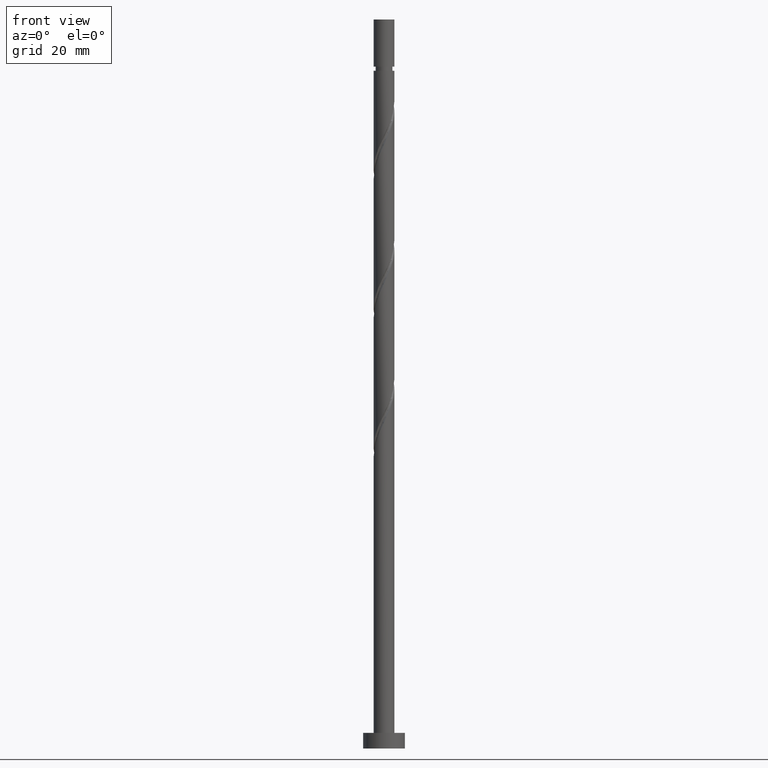
[diagram: clean part render]
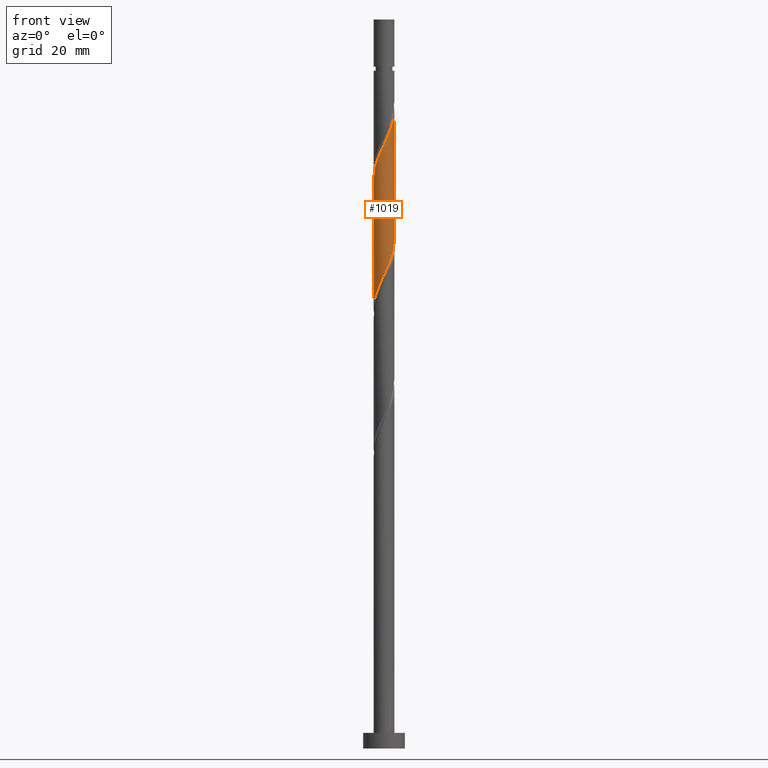
[diagram: same view with one face highlighted and labeled with its STEP entity id]
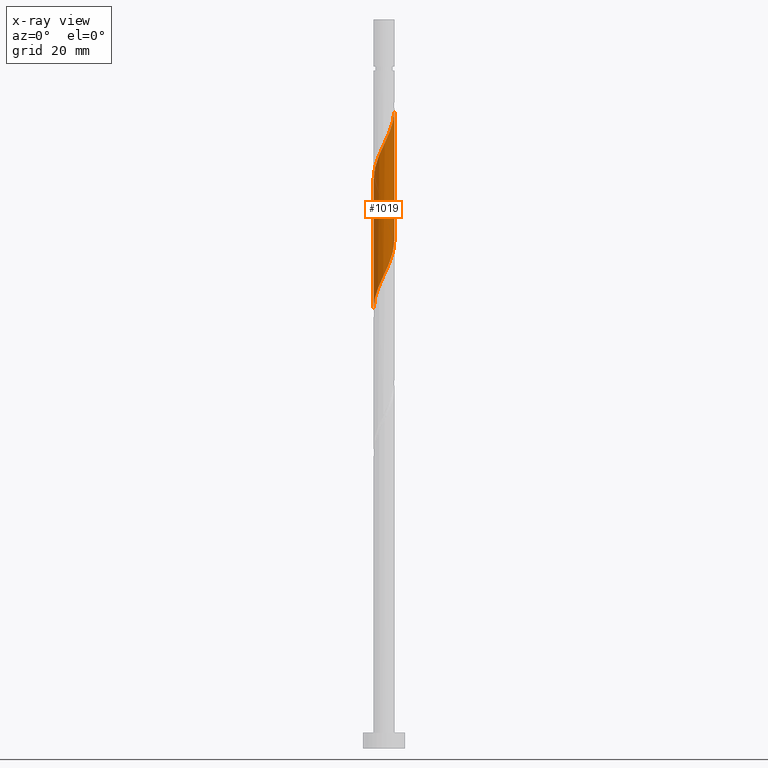
[diagram: x-ray of the same camera — body ghosted, the highlighted face saturated]
A machine part, front view. The second image highlights one B-rep face of the part: STEP entity #1019.
The next image is the same camera in x-ray: the body ghosted, the highlighted face saturated — about 0% of this face is hidden behind the body in this view.
In plain terms, the highlighted cylindrical surface (edge-blend (fillet) strip) has radius 2 mm, axis along (-0, -0, -1).
Its self-contained STEP definition (entity closure, byte-faithful):
#11 = ORIENTED_EDGE ( 'NONE', *, *, #926, .F. ) ;
#14 = CARTESIAN_POINT ( 'NONE',  ( 0.6798004310727963073, -1.902776961498554797, 117.4234335652534327 ) ) ;
#22 = CARTESIAN_POINT ( 'NONE',  ( -0.9928482695149690729, -1.759812803970229655, 113.7870699288898209 ) ) ;
#31 = EDGE_CURVE ( 'NONE', #1409, #783, #638, .T. ) ;
#108 = CARTESIAN_POINT ( 'NONE',  ( -2.000000000000000000, -3.694334713763628715E-15, 84.33349410516036926 ) ) ;
#158 = CARTESIAN_POINT ( 'NONE',  ( -1.220637884402356210, -1.584311571365225380, 113.1810093228292260 ) ) ;
#165 = CARTESIAN_POINT ( 'NONE',  ( -1.617545623245913999, -1.176242388590888144, 111.9688881107079936 ) ) ;
#190 = CARTESIAN_POINT ( 'NONE',  ( 0.7248413235775362784, -1.864029252891264310, 92.57494871676860271 ) ) ;
#225 = LINE ( 'NONE', #309, #1189 ) ;
#274 = CARTESIAN_POINT ( 'NONE',  ( 1.948211798543802997, -0.4521844623765087223, 121.6658578076776820 ) ) ;
#309 = CARTESIAN_POINT ( 'NONE',  ( -2.000000000000000000, 0.000000000000000000, 140.0000000000000000 ) ) ;
#328 = CARTESIAN_POINT ( 'NONE',  ( 1.980155124014551182, -0.4020876473299556109, 96.81737295919285202 ) ) ;
#333 = CARTESIAN_POINT ( 'NONE',  ( -0.9340691933046018081, -1.768478086411955363, 88.93858508040496247 ) ) ;
#339 = CARTESIAN_POINT ( 'NONE',  ( 0.1703224295138018596, -1.992734370156875157, 91.36282750464738456 ) ) ;
#398 = CARTESIAN_POINT ( 'NONE',  ( 1.883197487972274375, -0.7322950311120149935, 121.0597972016170587 ) ) ;
#403 =( BOUNDED_CURVE ( )  B_SPLINE_CURVE ( 2, ( #1347, #1480, #1090, #328, #1356, #1615, #1353, #1104, #977, #1491, #190, #1607, #339, #464, #720, #1469, #333, #953, #854, #575, #822, #947, #452, #713, #847 ),
 .UNSPECIFIED., .F., .T. ) 
 B_SPLINE_CURVE_WITH_KNOTS ( ( 3, 2, 2, 2, 2, 2, 2, 2, 2, 2, 2, 2, 3 ),
 ( 0.5545252162417513286, 0.5568181818181817677, 0.5681818181818182323, 0.5795454545454545858, 0.5909090909090909394, 0.6022727272727272929, 0.6136363636363636465, 0.6250000000000000000, 0.6363636363636363535, 0.6477272727272727071, 0.6590909090909090606, 0.6704545454545454142, 0.6795252162417514397 ),
 .UNSPECIFIED. ) 
 CURVE ( )  GEOMETRIC_REPRESENTATION_ITEM ( )  RATIONAL_B_SPLINE_CURVE ( ( 0.9061101570135567940, 0.9072237824201390133, 0.9090909090909164991, 0.8998376744372188485, 0.9090909090909164991, 0.8998376744372188485, 0.9090909090909164991, 0.8998376744372188485, 0.9090909090909164991, 0.8998376744372188485, 0.9090909090909164991, 0.8998376744372188485, 0.9090909090909164991, 0.8998376744372188485, 0.9090909090909164991, 0.8998376744372188485, 0.9090909090909164991, 0.8998376744372188485, 0.9090909090909164991, 0.8998376744372188485, 0.9090909090909164991, 0.8998376744372188485, 0.9090909090909164991, 0.9017048011079962233, 0.9061101570135570160 ) ) 
 REPRESENTATION_ITEM ( '' )  );
#405 = CARTESIAN_POINT ( 'NONE',  ( 2.000000000000002665, 1.278808170148940589E-15, 122.6345851465586065 ) ) ;
#417 = CARTESIAN_POINT ( 'NONE',  ( -0.4568343776401063705, -1.968245701812304072, 114.9991911410110106 ) ) ;
#423 = CARTESIAN_POINT ( 'NONE',  ( -0.7248413235775378327, -1.864029252891266752, 114.3931305349504157 ) ) ;
#438 = DIRECTION ( 'NONE',  ( -0.000000000000000000, -0.000000000000000000, -1.000000000000000000 ) ) ;
#446 = CARTESIAN_POINT ( 'NONE',  ( 0.000000000000000000, 0.000000000000000000, 140.0000000000000000 ) ) ;
#452 = CARTESIAN_POINT ( 'NONE',  ( -1.948211798543800333, -0.4521844623765076676, 85.30222144404132223 ) ) ;
#464 = CARTESIAN_POINT ( 'NONE',  ( -0.1161895186125011109, -2.017223038501448240, 90.75676689858676127 ) ) ;
#538 = CARTESIAN_POINT ( 'NONE',  ( 0.3979949748426482858, -1.960000000000002851, 116.8173729591928378 ) ) ;
#547 = CARTESIAN_POINT ( 'NONE',  ( 0.9340691933046023632, -1.768478086411958028, 118.0294941713140418 ) ) ;
#575 = CARTESIAN_POINT ( 'NONE',  ( -1.600603406160405084, -1.233189980288572851, 87.12040326222316367 ) ) ;
#580 = CARTESIAN_POINT ( 'NONE',  ( -2.000000000000002665, -1.376027504721667048E-15, 109.3012518132252779 ) ) ;
#632 = EDGE_LOOP ( 'NONE', ( #11, #1652, #1145, #1155 ) ) ;
#638 =( BOUNDED_CURVE ( )  B_SPLINE_CURVE ( 2, ( #1133, #1643, #758, #1053, #1549, #796, #165, #919, #158, #22, #423, #417, #672, #1191, #538, #14, #547, #1313, #1442, #810, #1435, #398, #274, #929, #1183 ),
 .UNSPECIFIED., .F., .T. ) 
 B_SPLINE_CURVE_WITH_KNOTS ( ( 3, 2, 2, 2, 2, 2, 2, 2, 2, 2, 2, 2, 3 ),
 ( 0.5545252162417512176, 0.5568181818181818787, 0.5681818181818181213, 0.5795454545454545858, 0.5909090909090908283, 0.6022727272727272929, 0.6136363636363636465, 0.6250000000000000000, 0.6363636363636363535, 0.6477272727272727071, 0.6590909090909091717, 0.6704545454545454142, 0.6795252162417511066 ),
 .UNSPECIFIED. ) 
 CURVE ( )  GEOMETRIC_REPRESENTATION_ITEM ( )  RATIONAL_B_SPLINE_CURVE ( ( 0.9061101570135621230, 0.9072237824201443424, 0.9090909090909219392, 0.8998376744372241776, 0.9090909090909219392, 0.8998376744372241776, 0.9090909090909219392, 0.8998376744372241776, 0.9090909090909219392, 0.8998376744372241776, 0.9090909090909219392, 0.8998376744372241776, 0.9090909090909219392, 0.8998376744372241776, 0.9090909090909219392, 0.8998376744372241776, 0.9090909090909219392, 0.8998376744372241776, 0.9090909090909219392, 0.8998376744372241776, 0.9090909090909219392, 0.8998376744372241776, 0.9090909090909219392, 0.9017048011080018854, 0.9061101570135619010 ) ) 
 REPRESENTATION_ITEM ( '' )  );
#667 = VERTEX_POINT ( 'NONE', #108 ) ;
#672 = CARTESIAN_POINT ( 'NONE',  ( -0.1703224295138029420, -1.992734370156877821, 115.6052517470716339 ) ) ;
#708 = FACE_OUTER_BOUND ( 'NONE', #632, .T. ) ;
#713 = CARTESIAN_POINT ( 'NONE',  ( -2.000000000000001332, -0.2290578547702419310, 84.81945405813168293 ) ) ;
#720 = CARTESIAN_POINT ( 'NONE',  ( -0.3979949748426485634, -1.959999999999999964, 90.15070629252616641 ) ) ;
#758 = CARTESIAN_POINT ( 'NONE',  ( -1.996690616564942733, -0.1150068768444767187, 109.5446456864655715 ) ) ;
#783 = VERTEX_POINT ( 'NONE', #405 ) ;
#796 = CARTESIAN_POINT ( 'NONE',  ( -1.786663747202084762, -0.9436744384215548509, 111.3628275046473988 ) ) ;
#810 = CARTESIAN_POINT ( 'NONE',  ( 1.600603406160406417, -1.233189980288574850, 119.8476759894958406 ) ) ;
#822 = CARTESIAN_POINT ( 'NONE',  ( -1.741900447066338176, -0.9827425057002935338, 86.51434265616252617 ) ) ;
#834 = CARTESIAN_POINT ( 'NONE',  ( 2.000000000000000000, 2.449293598294706414E-16, 140.0000000000000000 ) ) ;
#847 = CARTESIAN_POINT ( 'NONE',  ( -2.000000000000000000, -3.694334713763628715E-15, 84.33349410516036926 ) ) ;
#854 = CARTESIAN_POINT ( 'NONE',  ( -1.394470680848406197, -1.433684595806965500, 87.72646386828374432 ) ) ;
#899 = VERTEX_POINT ( 'NONE', #973 ) ;
#919 = CARTESIAN_POINT ( 'NONE',  ( -1.448427499289743459, -1.408810338760221326, 112.5749487167686027 ) ) ;
#926 = EDGE_CURVE ( 'NONE', #783, #899, #1586, .T. ) ;
#929 = CARTESIAN_POINT ( 'NONE',  ( 2.000000000000001776, -0.2290578547702530887, 122.1486251935872929 ) ) ;
#947 = CARTESIAN_POINT ( 'NONE',  ( -1.883197487972271711, -0.7322950311120142164, 85.90828205010191709 ) ) ;
#953 = CARTESIAN_POINT ( 'NONE',  ( -1.188337955536407309, -1.634179211325358372, 88.33252447434438182 ) ) ;
#973 = CARTESIAN_POINT ( 'NONE',  ( 2.000000000000000444, -2.303350388338456764E-15, 97.66682743849371207 ) ) ;
#977 = CARTESIAN_POINT ( 'NONE',  ( 1.220637884402353990, -1.584311571365224047, 93.78706992888977823 ) ) ;
#1019 = ADVANCED_FACE ( 'NONE', ( #708 ), #1082, .T. ) ;
#1021 = EDGE_CURVE ( 'NONE', #899, #667, #403, .T. ) ;
#1053 = CARTESIAN_POINT ( 'NONE',  ( -1.980155124014553403, -0.4020876473299553333, 110.1507062925261096 ) ) ;
#1082 = CYLINDRICAL_SURFACE ( 'NONE', #1097, 2.000000000000000000 ) ;
#1090 = CARTESIAN_POINT ( 'NONE',  ( 1.996690616564939846, -0.1150068768444773709, 97.42343356525341846 ) ) ;
#1097 = AXIS2_PLACEMENT_3D ( 'NONE', #446, #1471, #1599 ) ;
#1104 = CARTESIAN_POINT ( 'NONE',  ( 1.448427499289742126, -1.408810338760219993, 94.39313053495041572 ) ) ;
#1133 = CARTESIAN_POINT ( 'NONE',  ( -2.000000000000002665, -1.376027504721667048E-15, 109.3012518132252779 ) ) ;
#1145 = ORIENTED_EDGE ( 'NONE', *, *, #1632, .T. ) ;
#1155 = ORIENTED_EDGE ( 'NONE', *, *, #1021, .F. ) ;
#1182 = VECTOR ( 'NONE', #438, 1000.000000000000000 ) ;
#1183 = CARTESIAN_POINT ( 'NONE',  ( 2.000000000000002665, 1.278808170148940589E-15, 122.6345851465586065 ) ) ;
#1189 = VECTOR ( 'NONE', #1328, 1000.000000000000000 ) ;
#1191 = CARTESIAN_POINT ( 'NONE',  ( 0.1161895186125003615, -2.017223038501450461, 116.2113123531322287 ) ) ;
#1313 = CARTESIAN_POINT ( 'NONE',  ( 1.188337955536408641, -1.634179211325360370, 118.6355547773746366 ) ) ;
#1328 = DIRECTION ( 'NONE',  ( -0.000000000000000000, -0.000000000000000000, -1.000000000000000000 ) ) ;
#1347 = CARTESIAN_POINT ( 'NONE',  ( 2.000000000000000444, -2.303350388338456764E-15, 97.66682743849371207 ) ) ;
#1353 = CARTESIAN_POINT ( 'NONE',  ( 1.617545623245912001, -1.176242388590886589, 94.99919114101099638 ) ) ;
#1356 = CARTESIAN_POINT ( 'NONE',  ( 1.883409435608316418, -0.6728810428757545647, 96.21131235313224295 ) ) ;
#1409 = VERTEX_POINT ( 'NONE', #580 ) ;
#1435 = CARTESIAN_POINT ( 'NONE',  ( 1.741900447066340618, -0.9827425057002954212, 120.4537365955564923 ) ) ;
#1442 = CARTESIAN_POINT ( 'NONE',  ( 1.394470680848407307, -1.433684595806968165, 119.2416153834352599 ) ) ;
#1469 = CARTESIAN_POINT ( 'NONE',  ( -0.6798004310727959743, -1.902776961498551911, 89.54464568646555733 ) ) ;
#1471 = DIRECTION ( 'NONE',  ( -0.000000000000000000, -0.000000000000000000, -1.000000000000000000 ) ) ;
#1480 = CARTESIAN_POINT ( 'NONE',  ( 2.000000000000000444, -0.05755105304764637081, 97.54472943377550109 ) ) ;
#1491 = CARTESIAN_POINT ( 'NONE',  ( 0.9928482695149670745, -1.759812803970228101, 93.18100932282916915 ) ) ;
#1549 = CARTESIAN_POINT ( 'NONE',  ( -1.883409435608319527, -0.6728810428757548978, 110.7567668985867755 ) ) ;
#1586 = LINE ( 'NONE', #834, #1182 ) ;
#1599 = DIRECTION ( 'NONE',  ( -1.000000000000000000, 0.000000000000000000, 0.000000000000000000 ) ) ;
#1607 = CARTESIAN_POINT ( 'NONE',  ( 0.4568343776401059264, -1.968245701812300963, 91.96888811070799363 ) ) ;
#1615 = CARTESIAN_POINT ( 'NONE',  ( 1.786663747202082320, -0.9436744384215538517, 95.60525174707164808 ) ) ;
#1632 = EDGE_CURVE ( 'NONE', #1409, #667, #225, .T. ) ;
#1643 = CARTESIAN_POINT ( 'NONE',  ( -2.000000000000002665, -0.05755105304764054908, 109.4233498179434747 ) ) ;
#1652 = ORIENTED_EDGE ( 'NONE', *, *, #31, .F. ) ;